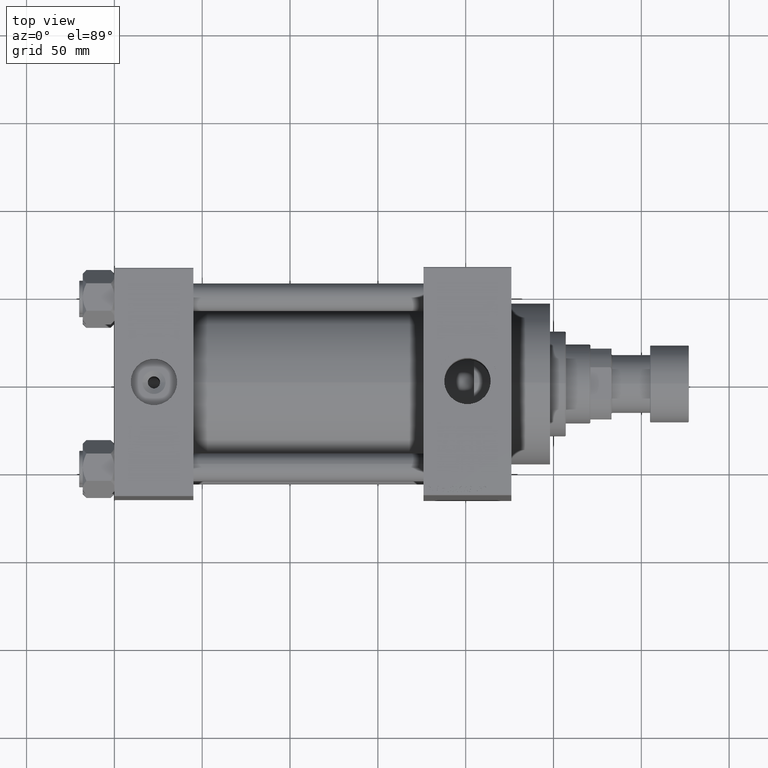
[diagram: clean part render]
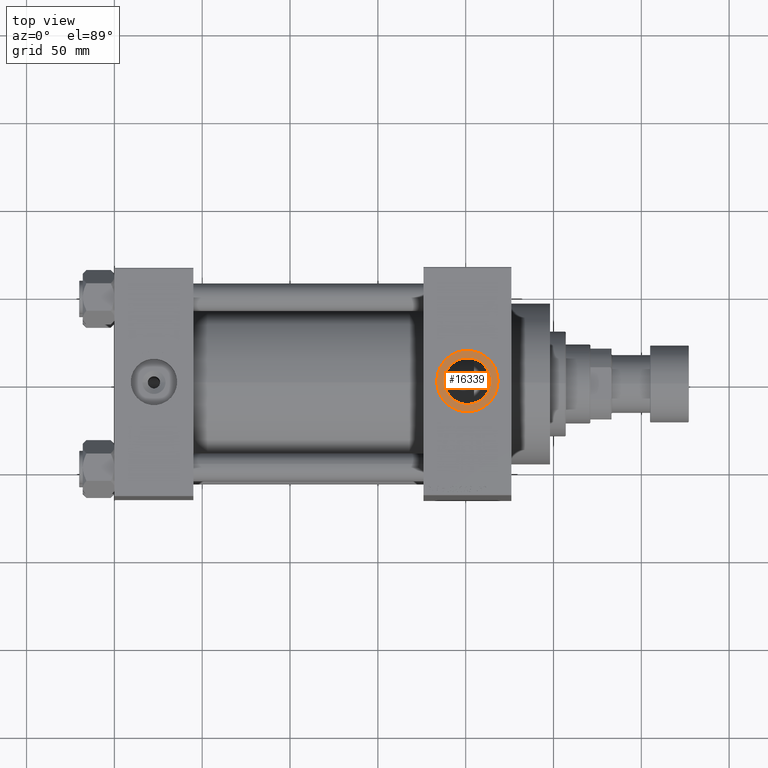
[diagram: same view with one face highlighted and labeled with its STEP entity id]
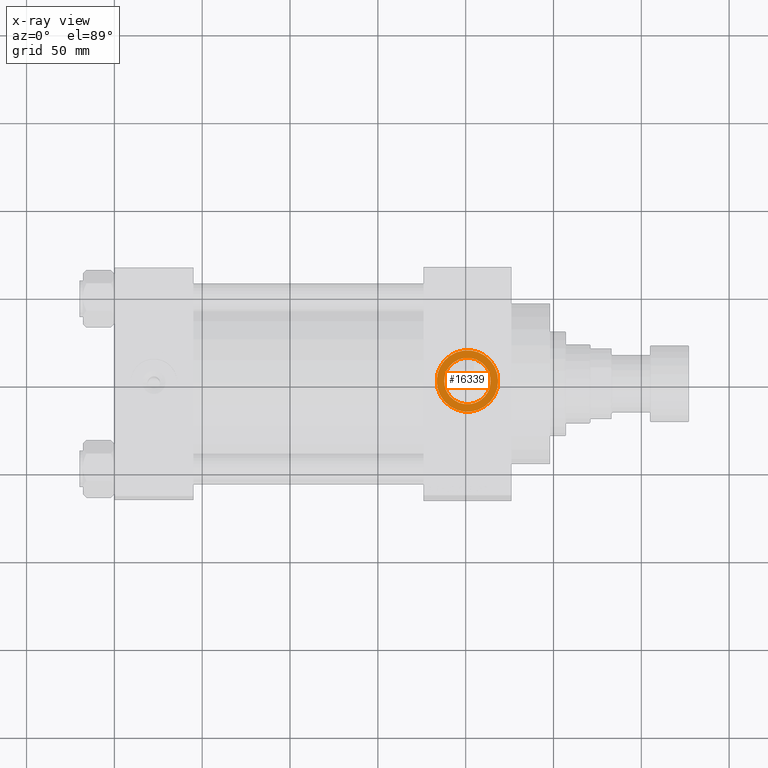
[diagram: x-ray of the same camera — body ghosted, the highlighted face saturated]
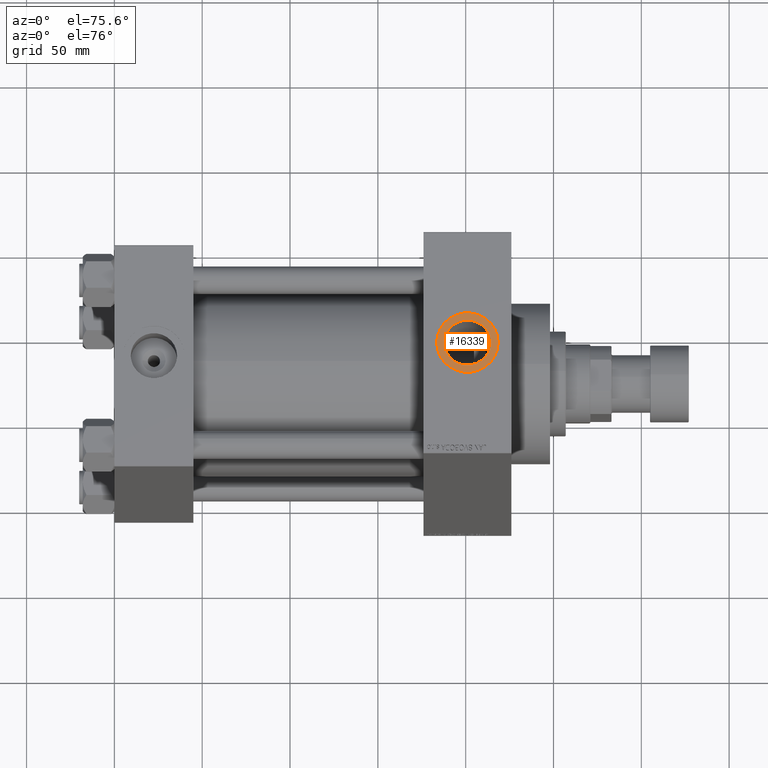
[diagram: same view with one face highlighted and labeled with its STEP entity id]
A machine part, top view. The second image highlights one B-rep face of the part: STEP entity #16339.
The next image is the same camera in x-ray: the body ghosted, the highlighted face saturated — about 0% of this face is hidden behind the body in this view.
A second angle (auxiliary view) of the same face is appended — the face is thin or edge-on in the first view.
In plain terms, the highlighted planar face has unit normal (0, 0, 1).
Its self-contained STEP definition (entity closure, byte-faithful):
#1093 = CARTESIAN_POINT ( 'NONE',  ( 218.4999999999999716, 0.000000000000000000, 94.79999999999996874 ) ) ;
#2047 = ORIENTED_EDGE ( 'NONE', *, *, #3995, .T. ) ;
#2908 = DIRECTION ( 'NONE',  ( 1.000000000000000000, 0.000000000000000000, 0.000000000000000000 ) ) ;
#3394 = DIRECTION ( 'NONE',  ( 0.000000000000000000, 0.000000000000000000, 1.000000000000000000 ) ) ;
#3995 = EDGE_CURVE ( 'NONE', #39161, #9476, #42787, .T. ) ;
#4508 = CIRCLE ( 'NONE', #13857, 13.22000000000000952 ) ;
#7927 = EDGE_LOOP ( 'NONE', ( #24804, #2047 ) ) ;
#9476 = VERTEX_POINT ( 'NONE', #1093 ) ;
#10238 = FACE_BOUND ( 'NONE', #35332, .T. ) ;
#10575 = CARTESIAN_POINT ( 'NONE',  ( 183.4999999999999432, 2.143131898507871404E-15, 94.79999999999996874 ) ) ;
#11366 = DIRECTION ( 'NONE',  ( 1.000000000000000000, 0.000000000000000000, 0.000000000000000000 ) ) ;
#13332 = DIRECTION ( 'NONE',  ( 1.000000000000000000, 0.000000000000000000, 0.000000000000000000 ) ) ;
#13857 = AXIS2_PLACEMENT_3D ( 'NONE', #27950, #28190, #13332 ) ;
#14609 = ORIENTED_EDGE ( 'NONE', *, *, #25009, .T. ) ;
#14787 = CARTESIAN_POINT ( 'NONE',  ( 200.9999999999999432, 0.000000000000000000, 94.79999999999996874 ) ) ;
#16339 = ADVANCED_FACE ( 'NONE', ( #10238, #36262 ), #32377, .T. ) ;
#17446 = AXIS2_PLACEMENT_3D ( 'NONE', #25330, #35556, #31909 ) ;
#19690 = EDGE_CURVE ( 'NONE', #33583, #23420, #40859, .T. ) ;
#22479 = CIRCLE ( 'NONE', #31023, 17.50000000000001421 ) ;
#23420 = VERTEX_POINT ( 'NONE', #37524 ) ;
#24804 = ORIENTED_EDGE ( 'NONE', *, *, #26901, .T. ) ;
#25009 = EDGE_CURVE ( 'NONE', #23420, #33583, #4508, .T. ) ;
#25330 = CARTESIAN_POINT ( 'NONE',  ( 200.9999999999999432, 0.000000000000000000, 94.79999999999996874 ) ) ;
#25547 = CARTESIAN_POINT ( 'NONE',  ( 200.9999999999999432, 0.000000000000000000, 94.79999999999996874 ) ) ;
#26901 = EDGE_CURVE ( 'NONE', #9476, #39161, #22479, .T. ) ;
#27950 = CARTESIAN_POINT ( 'NONE',  ( 200.9999999999999432, 0.000000000000000000, 94.79999999999996874 ) ) ;
#28190 = DIRECTION ( 'NONE',  ( -0.000000000000000000, -0.000000000000000000, -1.000000000000000000 ) ) ;
#31023 = AXIS2_PLACEMENT_3D ( 'NONE', #14787, #44943, #11366 ) ;
#31909 = DIRECTION ( 'NONE',  ( 1.000000000000000000, 0.000000000000000000, -0.000000000000000000 ) ) ;
#32377 = PLANE ( 'NONE',  #17446 ) ;
#33583 = VERTEX_POINT ( 'NONE', #34366 ) ;
#34366 = CARTESIAN_POINT ( 'NONE',  ( 187.7799999999999443, 0.000000000000000000, 94.79999999999996874 ) ) ;
#35332 = EDGE_LOOP ( 'NONE', ( #47702, #14609 ) ) ;
#35556 = DIRECTION ( 'NONE',  ( 0.000000000000000000, 0.000000000000000000, 1.000000000000000000 ) ) ;
#36262 = FACE_OUTER_BOUND ( 'NONE', #7927, .T. ) ;
#37524 = CARTESIAN_POINT ( 'NONE',  ( 214.2199999999999704, 1.618983068472802926E-15, 94.79999999999996874 ) ) ;
#39161 = VERTEX_POINT ( 'NONE', #10575 ) ;
#40453 = AXIS2_PLACEMENT_3D ( 'NONE', #44505, #3394, #2908 ) ;
#40604 = DIRECTION ( 'NONE',  ( 1.000000000000000000, 0.000000000000000000, 0.000000000000000000 ) ) ;
#40859 = CIRCLE ( 'NONE', #42406, 13.22000000000000952 ) ;
#42406 = AXIS2_PLACEMENT_3D ( 'NONE', #25547, #48140, #40604 ) ;
#42787 = CIRCLE ( 'NONE', #40453, 17.50000000000001421 ) ;
#44505 = CARTESIAN_POINT ( 'NONE',  ( 200.9999999999999432, 0.000000000000000000, 94.79999999999996874 ) ) ;
#44943 = DIRECTION ( 'NONE',  ( 0.000000000000000000, 0.000000000000000000, 1.000000000000000000 ) ) ;
#47702 = ORIENTED_EDGE ( 'NONE', *, *, #19690, .T. ) ;
#48140 = DIRECTION ( 'NONE',  ( -0.000000000000000000, -0.000000000000000000, -1.000000000000000000 ) ) ;